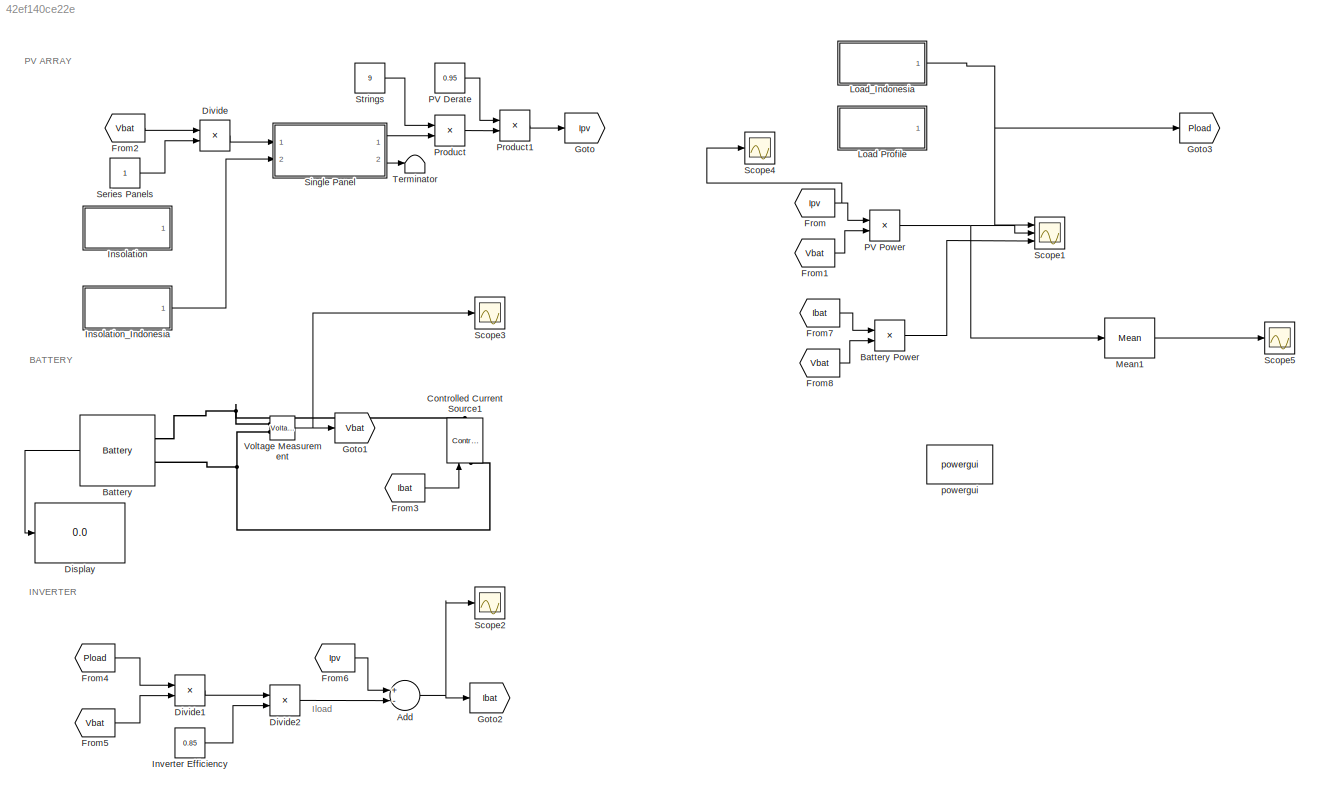
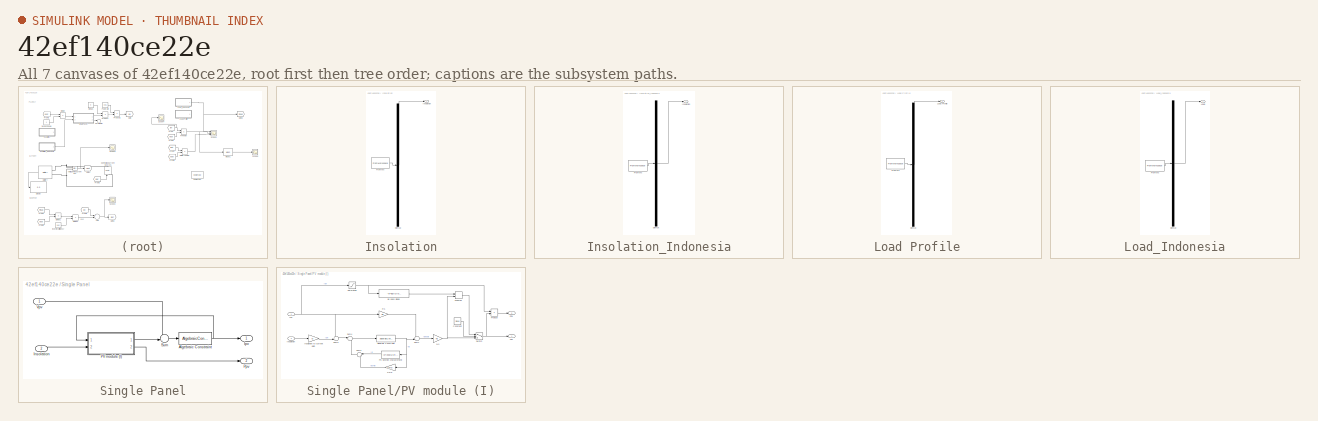
[diagram: thumbnail index - all 7 canvases of the model, root first then tree order]
MODEL slx_42ef140ce22e
KIND model
CONFIG AbsTol = auto
CONFIG EnableMultiTasking = on
CONFIG FixedStep = auto
CONFIG MaxStep = auto
CONFIG MinStep = auto
CONFIG RelTol = 1e-3
CONFIG SampleTimeConstraint = Unconstrained
CONFIG Solver = ode45
CONFIG SolverName = ode45
CONFIG StartTime = 0.0
CONFIG StopTime = 43200
BLOCK [Constant]  Series Panels 
BLOCK [Constant]  Strings
  Value = 9
BLOCK [Sum] Add
  InputSameDT = off
  Inputs = +-
  OutDataTypeStr = Inherit: Inherit via internal rule
  Ports = [2, 1]
  SaturateOnIntegerOverflow = off
BLOCK [Reference] Battery  REF=electricdrivelib/Extra Sources/Battery
  Ports = [0, 1, 0, 0, 0, 2]
  SourceBlock = electricdrivelib/Extra Sources/Battery
  SourceProductBaseCode = PS
  SourceProductName = Simscape Electrical
  SourceType = Battery
BLOCK [Product] Battery Power
  InputSameDT = off
  OutDataTypeStr = Inherit: Inherit via internal rule
  Ports = [2, 1]
  RndMeth = Floor
  SaturateOnIntegerOverflow = off
BLOCK [Reference] Controlled Current Source1  REF=powerlib/Electrical
Sources/Controlled Current Source
  Ports = [1, 0, 0, 0, 0, 1, 1]
  SourceBlock = powerlib/Electrical\nSources/Controlled Current Source
  SourceProductBaseCode = PS
  SourceProductName = Simscape Electrical
  SourceType = Controlled Current Source
BLOCK [Display] Display
  Decimation = 1
  Ports = [1]
BLOCK [Product] Divide
  InputSameDT = off
  Inputs = */
  OutDataTypeStr = Inherit: Inherit via internal rule
  Ports = [2, 1]
  RndMeth = Floor
  SaturateOnIntegerOverflow = off
BLOCK [Product] Divide1
  InputSameDT = off
  Inputs = */
  OutDataTypeStr = Inherit: Inherit via internal rule
  Ports = [2, 1]
  RndMeth = Floor
  SaturateOnIntegerOverflow = off
BLOCK [Product] Divide2
  InputSameDT = off
  Inputs = */
  OutDataTypeStr = Inherit: Inherit via internal rule
  Ports = [2, 1]
  RndMeth = Floor
  SaturateOnIntegerOverflow = off
BLOCK [From] From
  GotoTag = Ipv
BLOCK [From] From1
  GotoTag = Vbat
BLOCK [From] From2
  GotoTag = Vbat
BLOCK [From] From3
  GotoTag = Ibat
BLOCK [From] From4
  GotoTag = Pload
BLOCK [From] From5
  GotoTag = Vbat
BLOCK [From] From6
  GotoTag = Ipv
BLOCK [From] From7
  GotoTag = Ibat
BLOCK [From] From8
  GotoTag = Vbat
BLOCK [Goto] Goto
  GotoTag = Ipv
BLOCK [Goto] Goto1
  GotoTag = Vbat
BLOCK [Goto] Goto2
  GotoTag = Ibat
BLOCK [Goto] Goto3
  GotoTag = Pload
BLOCK [SubSystem] Insolation
  ClipboardFcn = sigbuilder_block('clipboard');
  CloseFcn = sigbuilder_block('close');
  Commented = on
  ContinueFcn = sigbuilder_block('continue')
  CopyFcn = sigbuilder_block('copy');
  DeleteFcn = sigbuilder_block('delete');
  LoadFcn = sigbuilder_block('load');
  MaskHideContents = on
  ModelCloseFcn = sigbuilder_block('modelClose');
  NameChangeFcn = sigbuilder_block('namechange');
  OpenFcn = sigbuilder_block('open',[5.5 42.5 949 437.5 ]);
  PauseFcn = sigbuilder_block('pause')
  Ports = [0, 1]
  PreSaveFcn = sigbuilder_block('preSave');
  RequestExecContextInheritance = off
  StartFcn = sigbuilder_block('start');
  StopFcn = sigbuilder_block('stop');
  Tag = STV Subsys
BLOCK [Demux] Insolation/Demux
  Outputs = 1
  Ports = [1, 1]
  Tag = STV Demux
BLOCK [FromWorkspace] Insolation/FromWs
  SampleTime = 0
  Tag = STV FromWs
  VariableName = tuvar
  ZeroCross = on
BLOCK [Outport] Insolation/Insolation
  IconDisplay = Port number
BLOCK [SubSystem] Insolation_Indonesia
  ClipboardFcn = sigbuilder_block('clipboard');
  CloseFcn = sigbuilder_block('close');
  ContinueFcn = sigbuilder_block('continue');
  CopyFcn = sigbuilder_block('copy');
  DeleteFcn = sigbuilder_block('delete');
  LoadFcn = sigbuilder_block('load');
  MaskHideContents = on
  ModelCloseFcn = sigbuilder_block('modelClose');
  NameChangeFcn = sigbuilder_block('namechange');
  OpenFcn = sigbuilder_block('open',[313.5 92 550.5 362.5 ]);
  PauseFcn = sigbuilder_block('pause');
  Ports = [0, 1]
  PreSaveFcn = sigbuilder_block('preSave');
  RequestExecContextInheritance = off
  StartFcn = sigbuilder_block('start');
  StopFcn = sigbuilder_block('stop');
  Tag = STV Subsys
BLOCK [Demux] Insolation_Indonesia/Demux
  Outputs = 1
  Ports = [1, 1]
  Tag = STV Demux
BLOCK [FromWorkspace] Insolation_Indonesia/FromWs
  SampleTime = 0
  Tag = STV FromWs
  VariableName = tuvar
  ZeroCross = on
BLOCK [Outport] Insolation_Indonesia/Insolation
  IconDisplay = Port number
  Tag = STV Outport
BLOCK [Constant] Inverter Efficiency
  Value = 0.85
BLOCK [SubSystem] Load Profile
  ClipboardFcn = sigbuilder_block('clipboard');
  CloseFcn = sigbuilder_block('close');
  Commented = on
  ContinueFcn = sigbuilder_block('continue');
  CopyFcn = sigbuilder_block('copy');
  DeleteFcn = sigbuilder_block('delete');
  LoadFcn = sigbuilder_block('load');
  MaskHideContents = on
  ModelCloseFcn = sigbuilder_block('modelClose');
  NameChangeFcn = sigbuilder_block('namechange');
  OpenFcn = sigbuilder_block('open',[97.5 52.5 543.5 351.5 ]);
  PauseFcn = sigbuilder_block('pause');
  Ports = [0, 1]
  PreSaveFcn = sigbuilder_block('preSave');
  RequestExecContextInheritance = off
  StartFcn = sigbuilder_block('start');
  StopFcn = sigbuilder_block('stop');
  Tag = STV Subsys
BLOCK [Demux] Load Profile/Demux
  Outputs = 1
  Ports = [1, 1]
  Tag = STV Demux
BLOCK [FromWorkspace] Load Profile/FromWs
  SampleTime = 0
  Tag = STV FromWs
  VariableName = tuvar
  ZeroCross = on
BLOCK [Outport] Load Profile/Load Profile
  IconDisplay = Port number
BLOCK [SubSystem] Load_Indonesia
  ClipboardFcn = sigbuilder_block('clipboard');
  CloseFcn = sigbuilder_block('close');
  ContinueFcn = sigbuilder_block('continue');
  CopyFcn = sigbuilder_block('copy');
  DeleteFcn = sigbuilder_block('delete');
  LoadFcn = sigbuilder_block('load');
  MaskHideContents = on
  ModelCloseFcn = sigbuilder_block('modelClose');
  NameChangeFcn = sigbuilder_block('namechange');
  OpenFcn = sigbuilder_block('open',[313.5 92 550.5 362.5 ]);
  PauseFcn = sigbuilder_block('pause');
  Ports = [0, 1]
  PreSaveFcn = sigbuilder_block('preSave');
  RequestExecContextInheritance = off
  StartFcn = sigbuilder_block('start');
  StopFcn = sigbuilder_block('stop');
  Tag = STV Subsys
BLOCK [Demux] Load_Indonesia/Demux
  Outputs = 1
  Ports = [1, 1]
  Tag = STV Demux
BLOCK [FromWorkspace] Load_Indonesia/FromWs
  SampleTime = 0
  Tag = STV FromWs
  VariableName = tuvar
  ZeroCross = on
BLOCK [Outport] Load_Indonesia/Load
  IconDisplay = Port number
  Tag = STV Outport
BLOCK [Reference] Mean1  REF=powerlib_meascontrol/Measurements/Mean
  Ports = [1, 1]
  SourceBlock = powerlib_meascontrol/Measurements/Mean
  SourceProductBaseCode = PS
  SourceProductName = Simscape Electrical
  SourceType = Mean
BLOCK [Constant] PV Derate
  Value = 0.95
BLOCK [Product] PV Power
  InputSameDT = off
  OutDataTypeStr = Inherit: Inherit via internal rule
  Ports = [2, 1]
  RndMeth = Floor
  SaturateOnIntegerOverflow = off
BLOCK [Product] Product
  InputSameDT = off
  OutDataTypeStr = Inherit: Inherit via internal rule
  Ports = [2, 1]
  RndMeth = Floor
  SaturateOnIntegerOverflow = off
BLOCK [Product] Product1
  InputSameDT = off
  OutDataTypeStr = Inherit: Inherit via internal rule
  Ports = [2, 1]
  RndMeth = Floor
  SaturateOnIntegerOverflow = off
BLOCK [Scope] Scope1
  Floating = off
  NumInputPorts = 3
  Ports = [3]
  ScopeSpecificationString = Simulink.scopes.TimeScopeBlockCfg('CurrentConfiguration', extmgr.ConfigurationSet(extmgr.Configuration('Core','General UI',true,'FigureColor',[0 0 0]),extmgr.Configuration('Core','Source UI',true),extmgr.Configuration('Sources','WiredSimulink',true,'DataLogging',true,'DataLoggingVariableName','ScopeData1','DataLoggingDecimation','1','DataLoggingDecimateData',true,'DataLoggingSaveFormat','Structure...<+5061ch>
BLOCK [Scope] Scope2
  Floating = off
  NumInputPorts = 1
  Ports = [1]
  ScopeSpecificationString = Simulink.scopes.TimeScopeBlockCfg('CurrentConfiguration', extmgr.ConfigurationSet(extmgr.Configuration('Core','General UI',true,'FigureColor',[0 0 0]),extmgr.Configuration('Core','Source UI',true),extmgr.Configuration('Sources','WiredSimulink',true,'DataLoggingSaveFormat','StructureWithTime','DataLoggingMaxPoints','50000','SampleTime','1','DataLoggingDecimation','1','DataLoggingDecimateData',true)...<+2637ch>
BLOCK [Scope] Scope3
  Floating = off
  NumInputPorts = 1
  Ports = [1]
  ScopeSpecificationString = Simulink.scopes.TimeScopeBlockCfg('CurrentConfiguration', extmgr.ConfigurationSet(extmgr.Configuration('Core','General UI',true,'FigureColor',[0 0 0]),extmgr.Configuration('Core','Source UI',true),extmgr.Configuration('Sources','WiredSimulink',true,'DataLoggingVariableName','ScopeData2','DataLoggingSaveFormat','StructureWithTime','DataLoggingMaxPoints','50000','SampleTime','1','DataLoggingDecimati...<+2681ch>
BLOCK [Scope] Scope4
  Floating = off
  NumInputPorts = 1
  Ports = [1]
  ScopeSpecificationString = C++SS(StrPVP('Location','[10, 79, 1930, 1069]'),StrPVP('Open','off'),MxPVP('AxesTitles',53,'struct(''axes1'',''Load'')'),MxPVP('ScopeGraphics',56,'struct(''FigureColor'',''[0 0 0]'',''AxesColor'',''[0 0 0]'',''AxesTickColor'',''[1 1 1]'',''LineColors'',''[1 1 0;1 0 1;0 1 1;1 0 0;0 1 0;0 0 1]'',''LineStyles'',''-|-|-|-|-|-'',''LineWidths'',''[0.5 0.5 0.5 0.5 0.5 0.5]'',''MarkerStyles'',''none|none|...<+354ch>
BLOCK [Scope] Scope5
  Floating = off
  NumInputPorts = 3
  Ports = [3]
  ScopeSpecificationString = C++SS(StrPVP('Location','[10, 79, 1930, 1069]'),StrPVP('Open','off'),MxPVP('AxesTitles',53,'struct(''axes1'',''Load'',''axes2'',''PV Power'',''axes3'',''Battery Power'')'),MxPVP('ScopeGraphics',56,'struct(''FigureColor'',''[0 0 0]'',''AxesColor'',''[0 0 0]'',''AxesTickColor'',''[1 1 1]'',''LineColors'',''[1 1 0;1 0 1;0 1 1;1 0 0;0 1 0;0 0 1]'',''LineStyles'',''-|-|-|-|-|-'',''LineWidths'',''[0.5 0...<+422ch>
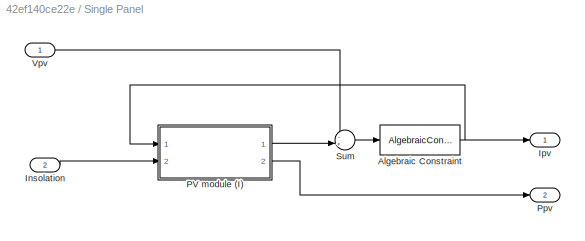
BLOCK [SubSystem] Single Panel
  Ports = [2, 2]
  RequestExecContextInheritance = off
BLOCK [AlgebraicConstraint] Single Panel/Algebraic Constraint
  InitialGuess = 5
BLOCK [Inport] Single Panel/Insolation
  IconDisplay = Port number
  Port = 2
BLOCK [Outport] Single Panel/Ipv
  IconDisplay = Port number
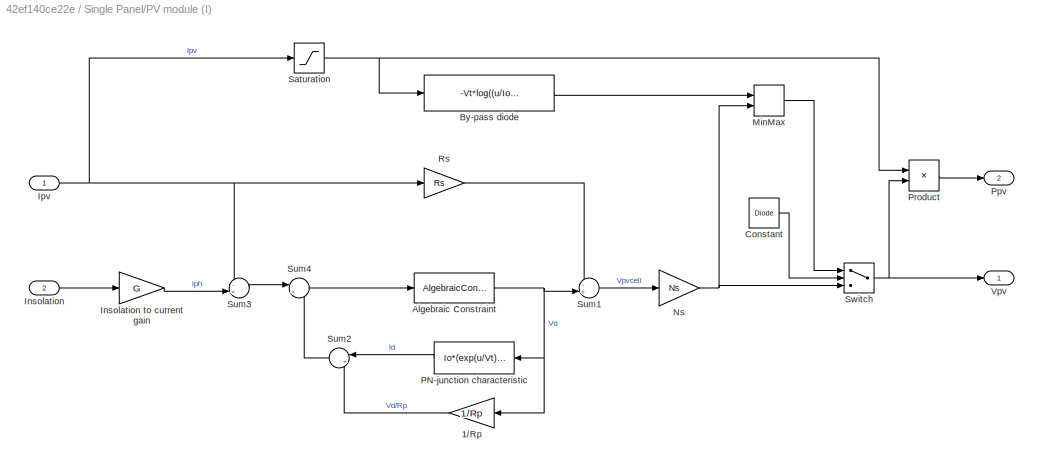
BLOCK [SubSystem] Single Panel/PV module (I)
  Ports = [2, 2]
  RequestExecContextInheritance = off
BLOCK [Gain] Single Panel/PV module (I)/1//Rp
  Gain = 1/Rp
  OutDataTypeStr = Inherit: Inherit via internal rule
  ParamDataTypeStr = Inherit: Inherit via internal rule
  SaturateOnIntegerOverflow = off
BLOCK [AlgebraicConstraint] Single Panel/PV module (I)/Algebraic Constraint
  InitialGuess = 0.1
BLOCK [Fcn] Single Panel/PV module (I)/By-pass diode
  Expr = -Vt*log((u/Io)+1)
BLOCK [Constant] Single Panel/PV module (I)/Constant
  Value = Diode
BLOCK [Inport] Single Panel/PV module (I)/Insolation
  IconDisplay = Port number
  Port = 2
BLOCK [Gain] Single Panel/PV module (I)/Insolation to current gain
  Gain = G
  OutDataTypeStr = Inherit: Inherit via internal rule
  ParamDataTypeStr = Inherit: Inherit via internal rule
  SaturateOnIntegerOverflow = off
BLOCK [Inport] Single Panel/PV module (I)/Ipv
  IconDisplay = Port number
BLOCK [MinMax] Single Panel/PV module (I)/MinMax
  Function = max
  InputSameDT = off
  Inputs = 2
  Ports = [2, 1]
  SaturateOnIntegerOverflow = off
BLOCK [Gain] Single Panel/PV module (I)/Ns
  Gain = Ns
  OutDataTypeStr = Inherit: Inherit via internal rule
  ParamDataTypeStr = Inherit: Inherit via internal rule
  SaturateOnIntegerOverflow = off
BLOCK [Fcn] Single Panel/PV module (I)/PN-junction characteristic
  Expr = Io*(exp(u/Vt)-1)
BLOCK [Outport] Single Panel/PV module (I)/Ppv
  IconDisplay = Port number
  Port = 2
BLOCK [Product] Single Panel/PV module (I)/Product
  InputSameDT = off
  OutDataTypeStr = Inherit: Inherit via internal rule
  Ports = [2, 1]
  SaturateOnIntegerOverflow = off
BLOCK [Gain] Single Panel/PV module (I)/Rs
  Gain = Rs
  OutDataTypeStr = Inherit: Inherit via internal rule
  ParamDataTypeStr = Inherit: Inherit via internal rule
  SaturateOnIntegerOverflow = off
BLOCK [Saturate] Single Panel/PV module (I)/Saturation
  InputPortMap = u0
  LowerLimit = 0
  Ports = [1, 1]
  UpperLimit = inf
BLOCK [Sum] Single Panel/PV module (I)/Sum1
  IconShape = round
  InputSameDT = off
  Inputs = -+|
  OutDataTypeStr = Inherit: Inherit via internal rule
  Ports = [2, 1]
  SaturateOnIntegerOverflow = off
BLOCK [Sum] Single Panel/PV module (I)/Sum2
  IconShape = round
  InputSameDT = off
  Inputs = |++
  OutDataTypeStr = Inherit: Inherit via internal rule
  Ports = [2, 1]
  SaturateOnIntegerOverflow = off
BLOCK [Sum] Single Panel/PV module (I)/Sum3
  IconShape = round
  InputSameDT = off
  Inputs = -+|
  OutDataTypeStr = Inherit: Inherit via internal rule
  Ports = [2, 1]
  SaturateOnIntegerOverflow = off
BLOCK [Sum] Single Panel/PV module (I)/Sum4
  IconShape = round
  InputSameDT = off
  Inputs = |+-
  OutDataTypeStr = Inherit: Inherit via internal rule
  Ports = [2, 1]
  SaturateOnIntegerOverflow = off
BLOCK [Switch] Single Panel/PV module (I)/Switch
  Criteria = u2 > Threshold
  InputSameDT = off
  SaturateOnIntegerOverflow = off
BLOCK [Outport] Single Panel/PV module (I)/Vpv
  IconDisplay = Port number
BLOCK [Outport] Single Panel/Ppv
  IconDisplay = Port number
  Port = 2
BLOCK [Sum] Single Panel/Sum
  IconShape = round
  InputSameDT = off
  Inputs = -+|
  OutDataTypeStr = Inherit: Inherit via internal rule
  Ports = [2, 1]
  SaturateOnIntegerOverflow = off
BLOCK [Inport] Single Panel/Vpv
  IconDisplay = Port number
BLOCK [Terminator] Terminator
BLOCK [Reference] Voltage Measurement  REF=powerlib/Measurements/Voltage Measurement
  Ports = [0, 1, 0, 0, 0, 2]
  SourceBlock = powerlib/Measurements/Voltage Measurement
  SourceProductBaseCode = PS
  SourceProductName = Simscape Electrical
  SourceType = Voltage Measurement
  UserDataPersistent = on
BLOCK [Reference] powergui  REF=powerlib/powergui
  Ports = []
  Priority = 1
  SourceBlock = powerlib/powergui
  SourceProductBaseCode = PS
  SourceProductName = Simscape Power Systems
  SourceType = PSB option menu block
ANNOTATION (root): BATTERY
ANNOTATION (root): INVERTER
ANNOTATION (root): Iload
ANNOTATION (root): PV ARRAY
LINE  Series Panels :1 -> Divide:2
LINE  Strings:1 -> Product:1
NET Add:1 -> Goto2:1, Scope2:1
LINE Battery Power:1 -> Scope1:3
LINE Battery:1 -> Display:1
LINE Divide1:1 -> Divide2:1
LINE Divide2:1 -> Add:2
LINE Divide:1 -> Single Panel:1
LINE From1:1 -> PV Power:2
LINE From2:1 -> Divide:1
LINE From3:1 -> Controlled Current Source1:1
LINE From4:1 -> Divide1:1
LINE From5:1 -> Divide1:2
LINE From6:1 -> Add:1
LINE From7:1 -> Battery Power:1
LINE From8:1 -> Battery Power:2
NET From:1 -> PV Power:1, Scope4:1
LINE Insolation_Indonesia:1 -> Single Panel:2
LINE Inverter Efficiency:1 -> Divide2:2
NET Load_Indonesia:1 -> Goto3:1, Scope1:1
LINE Mean1:1 -> Scope5:2
LINE PV Derate:1 -> Product1:1
NET PV Power:1 -> Mean1:1, Scope1:2
LINE Product1:1 -> Goto:1
LINE Product:1 -> Product1:2
NET Single Panel/Algebraic Constraint:1 -> Single Panel/Ipv:1, Single Panel/PV module (I):1
LINE Single Panel/Insolation:1 -> Single Panel/PV module (I):2
LINE Single Panel/PV module (I)/1//Rp:1 -> Single Panel/PV module (I)/Sum2:2
NET Single Panel/PV module (I)/Algebraic Constraint:1 -> Single Panel/PV module (I)/1//Rp:1, Single Panel/PV module (I)/PN-junction characteristic:1, Single Panel/PV module (I)/Sum1:2
LINE Single Panel/PV module (I)/By-pass diode:1 -> Single Panel/PV module (I)/MinMax:1
LINE Single Panel/PV module (I)/Constant:1 -> Single Panel/PV module (I)/Switch:2
LINE Single Panel/PV module (I)/Insolation to current gain:1 -> Single Panel/PV module (I)/Sum3:2
LINE Single Panel/PV module (I)/Insolation:1 -> Single Panel/PV module (I)/Insolation to current gain:1
NET Single Panel/PV module (I)/Ipv:1 -> Single Panel/PV module (I)/Rs:1, Single Panel/PV module (I)/Saturation:1, Single Panel/PV module (I)/Sum3:1
LINE Single Panel/PV module (I)/MinMax:1 -> Single Panel/PV module (I)/Switch:1
NET Single Panel/PV module (I)/Ns:1 -> Single Panel/PV module (I)/MinMax:2, Single Panel/PV module (I)/Switch:3
LINE Single Panel/PV module (I)/PN-junction characteristic:1 -> Single Panel/PV module (I)/Sum2:1
LINE Single Panel/PV module (I)/Product:1 -> Single Panel/PV module (I)/Ppv:1
LINE Single Panel/PV module (I)/Rs:1 -> Single Panel/PV module (I)/Sum1:1
NET Single Panel/PV module (I)/Saturation:1 -> Single Panel/PV module (I)/By-pass diode:1, Single Panel/PV module (I)/Product:1
LINE Single Panel/PV module (I)/Sum1:1 -> Single Panel/PV module (I)/Ns:1
LINE Single Panel/PV module (I)/Sum2:1 -> Single Panel/PV module (I)/Sum4:2
LINE Single Panel/PV module (I)/Sum3:1 -> Single Panel/PV module (I)/Sum4:1
LINE Single Panel/PV module (I)/Sum4:1 -> Single Panel/PV module (I)/Algebraic Constraint:1
NET Single Panel/PV module (I)/Switch:1 -> Single Panel/PV module (I)/Product:2, Single Panel/PV module (I)/Vpv:1
LINE Single Panel/PV module (I):1 -> Single Panel/Sum:2
LINE Single Panel/PV module (I):2 -> Single Panel/Ppv:1
LINE Single Panel/Sum:1 -> Single Panel/Algebraic Constraint:1
LINE Single Panel/Vpv:1 -> Single Panel/Sum:1
LINE Single Panel:1 -> Product:2
LINE Single Panel:2 -> Terminator:1
NET Voltage Measurement:1 -> Goto1:1, Scope3:1
PNET net1: Battery:LConn1 -- Controlled Current Source1:RConn1 -- Voltage Measurement:LConn1
PNET net2: Battery:LConn2 -- Controlled Current Source1:LConn1 -- Voltage Measurement:LConn2
note: NET lines group one-source signal fan-out (src -> all destinations, sorted); 1:1 wires keep LINE; PNET lines group multi-terminal physical nets as a canonical sorted terminal list (undirected conserving connections); 2-terminal nets keep the pairwise PLINE form
